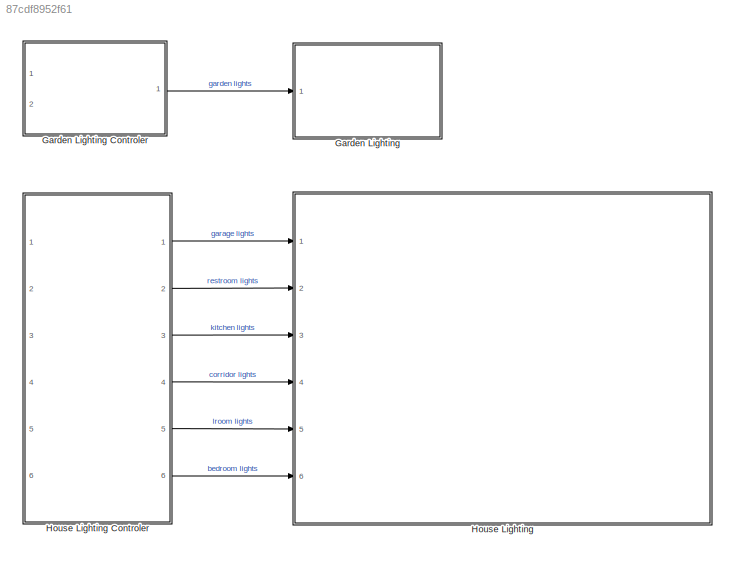
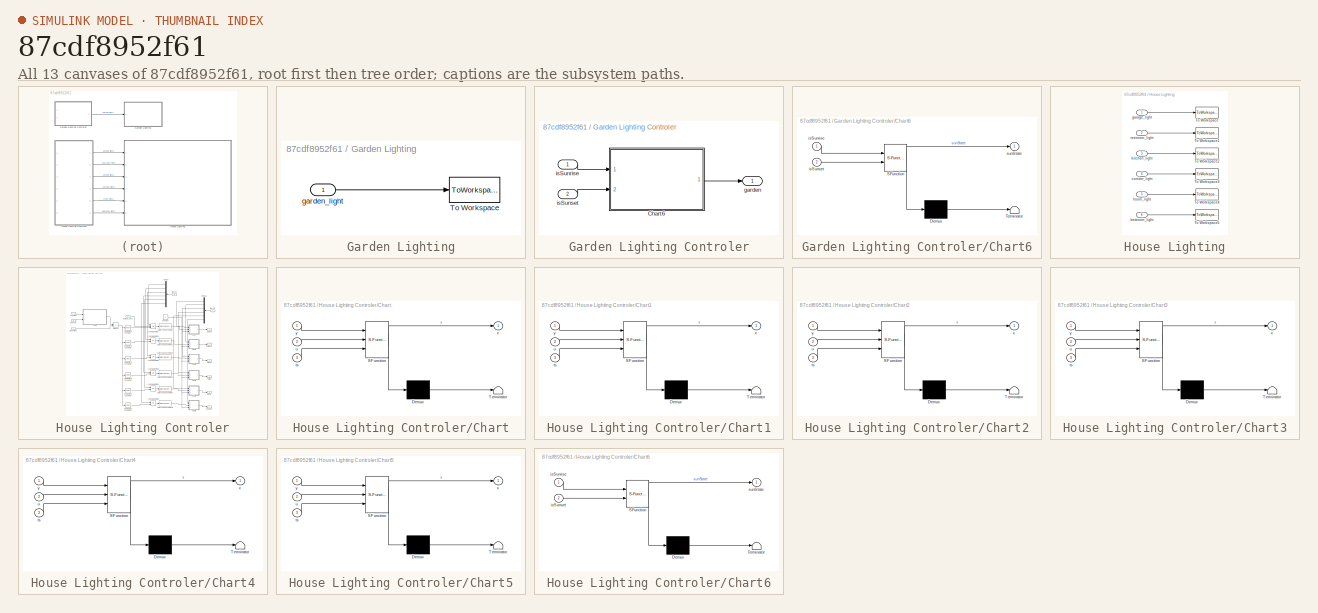
[diagram: thumbnail index - all 13 canvases of the model, root first then tree order]
MODEL slx_87cdf8952f61
KIND model
CONFIG AbsTol = auto
CONFIG EnableMultiTasking = off
CONFIG FixedStep = auto
CONFIG MaxStep = auto
CONFIG MinStep = auto
CONFIG RelTol = 1e-3
CONFIG SampleTimeConstraint = Unconstrained
CONFIG Solver = VariableStepAuto
CONFIG SolverName = VariableStepAuto
CONFIG StartTime = 0.0
CONFIG StopTime = intervals
BLOCK [SubSystem] Garden Lighting
  Ports = [1]
  RequestExecContextInheritance = off
BLOCK [SubSystem] Garden Lighting Controler
  Ports = [2, 1]
  RequestExecContextInheritance = off
BLOCK [SubSystem] Garden Lighting Controler/Chart6
  ErrorFcn = Stateflow.Translate.translate
  PermitHierarchicalResolution = ExplicitOnly
  Ports = [2, 1]
  RequestExecContextInheritance = off
  SFBlockType = Chart
  TreatAsAtomicUnit = on
BLOCK [Demux] Garden Lighting Controler/Chart6/ Demux 
  Outputs = 1
  Ports = [1, 1]
BLOCK [S-Function] Garden Lighting Controler/Chart6/ SFunction 
  EnableBusSupport = on
  FunctionName = sf_sfun
  PortCounts = [2 2]
  Ports = [2, 2]
  SFcnIsStateOwnerBlock = off
  SFunctionDeploymentMode = off
  Tag = Stateflow S-Function lighting 8
BLOCK [Terminator] Garden Lighting Controler/Chart6/ Terminator 
BLOCK [Inport] Garden Lighting Controler/Chart6/isSunrise
  IconDisplay = Port number
BLOCK [Inport] Garden Lighting Controler/Chart6/isSunset
  IconDisplay = Port number
  Port = 2
BLOCK [Outport] Garden Lighting Controler/Chart6/sunState
  IconDisplay = Port number
BLOCK [Outport] Garden Lighting Controler/garden
  IconDisplay = Port number
BLOCK [Inport] Garden Lighting Controler/isSunrise
  IconDisplay = Port number
BLOCK [Inport] Garden Lighting Controler/isSunset
  IconDisplay = Port number
  Port = 2
BLOCK [ToWorkspace] Garden Lighting/To Workspace
  FixptAsFi = on
  MaxDataPoints = inf
  Ports = [1]
  SampleTime = -1
  Save2DSignal = 3-D array (concatenate along third dimension)
  SaveFormat = Timeseries
  VariableName = garden_light
BLOCK [Inport] Garden Lighting/garden_light
  IconDisplay = Port number
BLOCK [SubSystem] House Lighting
  Ports = [6]
  RequestExecContextInheritance = off
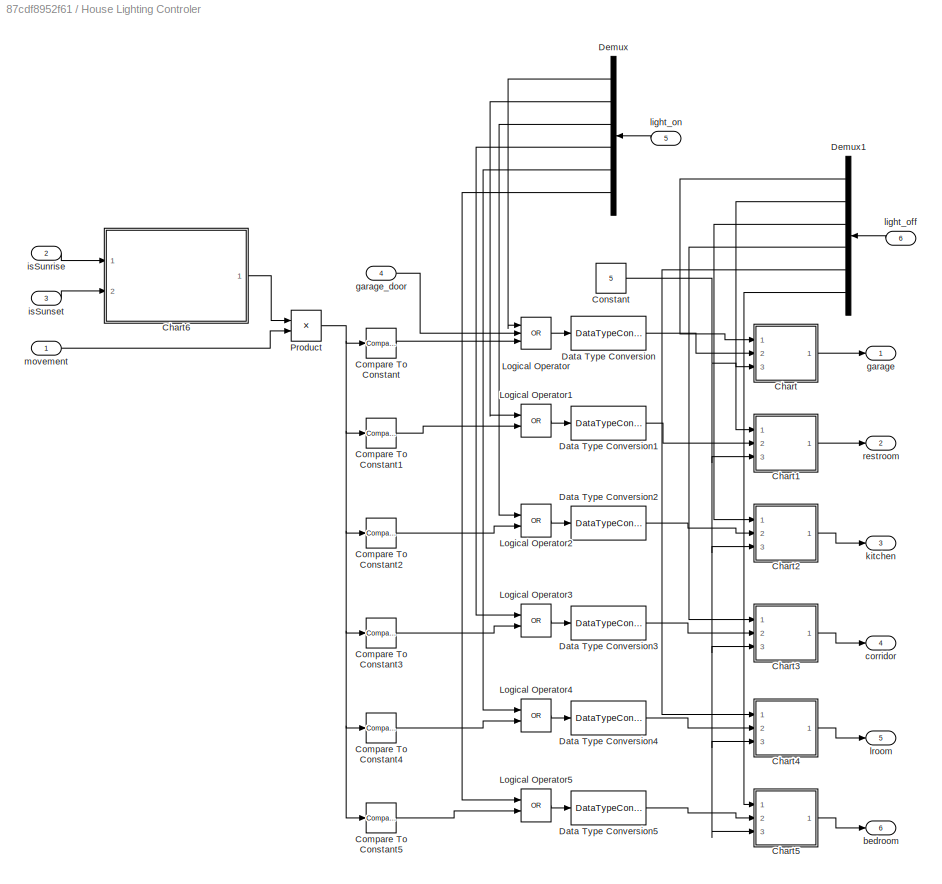
BLOCK [SubSystem] House Lighting Controler
  Ports = [6, 6]
  RequestExecContextInheritance = off
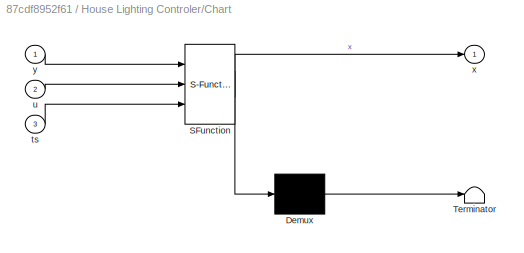
BLOCK [SubSystem] House Lighting Controler/Chart
  ErrorFcn = Stateflow.Translate.translate
  PermitHierarchicalResolution = ExplicitOnly
  Ports = [3, 1]
  RequestExecContextInheritance = off
  SFBlockType = Chart
  TreatAsAtomicUnit = on
BLOCK [Demux] House Lighting Controler/Chart/ Demux 
  Outputs = 1
  Ports = [1, 1]
BLOCK [S-Function] House Lighting Controler/Chart/ SFunction 
  EnableBusSupport = on
  FunctionName = sf_sfun
  PortCounts = [3 2]
  Ports = [3, 2]
  SFcnIsStateOwnerBlock = off
  SFunctionDeploymentMode = off
  Tag = Stateflow S-Function lighting 1
BLOCK [Terminator] House Lighting Controler/Chart/ Terminator 
BLOCK [Inport] House Lighting Controler/Chart/ts
  IconDisplay = Port number
  Port = 3
BLOCK [Inport] House Lighting Controler/Chart/u
  IconDisplay = Port number
  Port = 2
BLOCK [Outport] House Lighting Controler/Chart/x
  IconDisplay = Port number
BLOCK [Inport] House Lighting Controler/Chart/y
  IconDisplay = Port number
BLOCK [SubSystem] House Lighting Controler/Chart1
  ErrorFcn = Stateflow.Translate.translate
  PermitHierarchicalResolution = ExplicitOnly
  Ports = [3, 1]
  RequestExecContextInheritance = off
  SFBlockType = Chart
  TreatAsAtomicUnit = on
BLOCK [Demux] House Lighting Controler/Chart1/ Demux 
  Outputs = 1
  Ports = [1, 1]
BLOCK [S-Function] House Lighting Controler/Chart1/ SFunction 
  EnableBusSupport = on
  FunctionName = sf_sfun
  PortCounts = [3 2]
  Ports = [3, 2]
  SFcnIsStateOwnerBlock = off
  SFunctionDeploymentMode = off
  Tag = Stateflow S-Function lighting 2
BLOCK [Terminator] House Lighting Controler/Chart1/ Terminator 
BLOCK [Inport] House Lighting Controler/Chart1/ts
  IconDisplay = Port number
  Port = 3
BLOCK [Inport] House Lighting Controler/Chart1/u
  IconDisplay = Port number
  Port = 2
BLOCK [Outport] House Lighting Controler/Chart1/x
  IconDisplay = Port number
BLOCK [Inport] House Lighting Controler/Chart1/y
  IconDisplay = Port number
BLOCK [SubSystem] House Lighting Controler/Chart2
  ErrorFcn = Stateflow.Translate.translate
  PermitHierarchicalResolution = ExplicitOnly
  Ports = [3, 1]
  RequestExecContextInheritance = off
  SFBlockType = Chart
  TreatAsAtomicUnit = on
BLOCK [Demux] House Lighting Controler/Chart2/ Demux 
  Outputs = 1
  Ports = [1, 1]
BLOCK [S-Function] House Lighting Controler/Chart2/ SFunction 
  EnableBusSupport = on
  FunctionName = sf_sfun
  PortCounts = [3 2]
  Ports = [3, 2]
  SFcnIsStateOwnerBlock = off
  SFunctionDeploymentMode = off
  Tag = Stateflow S-Function lighting 4
BLOCK [Terminator] House Lighting Controler/Chart2/ Terminator 
BLOCK [Inport] House Lighting Controler/Chart2/ts
  IconDisplay = Port number
  Port = 3
BLOCK [Inport] House Lighting Controler/Chart2/u
  IconDisplay = Port number
  Port = 2
BLOCK [Outport] House Lighting Controler/Chart2/x
  IconDisplay = Port number
BLOCK [Inport] House Lighting Controler/Chart2/y
  IconDisplay = Port number
BLOCK [SubSystem] House Lighting Controler/Chart3
  ErrorFcn = Stateflow.Translate.translate
  PermitHierarchicalResolution = ExplicitOnly
  Ports = [3, 1]
  RequestExecContextInheritance = off
  SFBlockType = Chart
  TreatAsAtomicUnit = on
BLOCK [Demux] House Lighting Controler/Chart3/ Demux 
  Outputs = 1
  Ports = [1, 1]
BLOCK [S-Function] House Lighting Controler/Chart3/ SFunction 
  EnableBusSupport = on
  FunctionName = sf_sfun
  PortCounts = [3 2]
  Ports = [3, 2]
  SFcnIsStateOwnerBlock = off
  SFunctionDeploymentMode = off
  Tag = Stateflow S-Function lighting 5
BLOCK [Terminator] House Lighting Controler/Chart3/ Terminator 
BLOCK [Inport] House Lighting Controler/Chart3/ts
  IconDisplay = Port number
  Port = 3
BLOCK [Inport] House Lighting Controler/Chart3/u
  IconDisplay = Port number
  Port = 2
BLOCK [Outport] House Lighting Controler/Chart3/x
  IconDisplay = Port number
BLOCK [Inport] House Lighting Controler/Chart3/y
  IconDisplay = Port number
BLOCK [SubSystem] House Lighting Controler/Chart4
  ErrorFcn = Stateflow.Translate.translate
  PermitHierarchicalResolution = ExplicitOnly
  Ports = [3, 1]
  RequestExecContextInheritance = off
  SFBlockType = Chart
  TreatAsAtomicUnit = on
BLOCK [Demux] House Lighting Controler/Chart4/ Demux 
  Outputs = 1
  Ports = [1, 1]
BLOCK [S-Function] House Lighting Controler/Chart4/ SFunction 
  EnableBusSupport = on
  FunctionName = sf_sfun
  PortCounts = [3 2]
  Ports = [3, 2]
  SFcnIsStateOwnerBlock = off
  SFunctionDeploymentMode = off
  Tag = Stateflow S-Function lighting 6
BLOCK [Terminator] House Lighting Controler/Chart4/ Terminator 
BLOCK [Inport] House Lighting Controler/Chart4/ts
  IconDisplay = Port number
  Port = 3
BLOCK [Inport] House Lighting Controler/Chart4/u
  IconDisplay = Port number
  Port = 2
BLOCK [Outport] House Lighting Controler/Chart4/x
  IconDisplay = Port number
BLOCK [Inport] House Lighting Controler/Chart4/y
  IconDisplay = Port number
BLOCK [SubSystem] House Lighting Controler/Chart5
  ErrorFcn = Stateflow.Translate.translate
  PermitHierarchicalResolution = ExplicitOnly
  Ports = [3, 1]
  RequestExecContextInheritance = off
  SFBlockType = Chart
  TreatAsAtomicUnit = on
BLOCK [Demux] House Lighting Controler/Chart5/ Demux 
  Outputs = 1
  Ports = [1, 1]
BLOCK [S-Function] House Lighting Controler/Chart5/ SFunction 
  EnableBusSupport = on
  FunctionName = sf_sfun
  PortCounts = [3 2]
  Ports = [3, 2]
  SFcnIsStateOwnerBlock = off
  SFunctionDeploymentMode = off
  Tag = Stateflow S-Function lighting 7
BLOCK [Terminator] House Lighting Controler/Chart5/ Terminator 
BLOCK [Inport] House Lighting Controler/Chart5/ts
  IconDisplay = Port number
  Port = 3
BLOCK [Inport] House Lighting Controler/Chart5/u
  IconDisplay = Port number
  Port = 2
BLOCK [Outport] House Lighting Controler/Chart5/x
  IconDisplay = Port number
BLOCK [Inport] House Lighting Controler/Chart5/y
  IconDisplay = Port number
BLOCK [SubSystem] House Lighting Controler/Chart6
  ErrorFcn = Stateflow.Translate.translate
  PermitHierarchicalResolution = ExplicitOnly
  Ports = [2, 1]
  RequestExecContextInheritance = off
  SFBlockType = Chart
  TreatAsAtomicUnit = on
BLOCK [Demux] House Lighting Controler/Chart6/ Demux 
  Outputs = 1
  Ports = [1, 1]
BLOCK [S-Function] House Lighting Controler/Chart6/ SFunction 
  EnableBusSupport = on
  FunctionName = sf_sfun
  PortCounts = [2 2]
  Ports = [2, 2]
  SFcnIsStateOwnerBlock = off
  SFunctionDeploymentMode = off
  Tag = Stateflow S-Function lighting 9
BLOCK [Terminator] House Lighting Controler/Chart6/ Terminator 
BLOCK [Inport] House Lighting Controler/Chart6/isSunrise
  IconDisplay = Port number
BLOCK [Inport] House Lighting Controler/Chart6/isSunset
  IconDisplay = Port number
  Port = 2
BLOCK [Outport] House Lighting Controler/Chart6/sunState
  IconDisplay = Port number
BLOCK [Reference] House Lighting Controler/Compare To Constant  REF=simulink/Logic and Bit
Operations/Compare
To Constant
  Ports = [1, 1]
  SourceBlock = simulink/Logic and Bit\nOperations/Compare\nTo Constant
  SourceProductBaseCode = SL
  SourceProductName = Simulink
  SourceType = Compare To Constant
BLOCK [Reference] House Lighting Controler/Compare To Constant1  REF=simulink/Logic and Bit
Operations/Compare
To Constant
  Ports = [1, 1]
  SourceBlock = simulink/Logic and Bit\nOperations/Compare\nTo Constant
  SourceProductBaseCode = SL
  SourceProductName = Simulink
  SourceType = Compare To Constant
BLOCK [Reference] House Lighting Controler/Compare To Constant2  REF=simulink/Logic and Bit
Operations/Compare
To Constant
  Ports = [1, 1]
  SourceBlock = simulink/Logic and Bit\nOperations/Compare\nTo Constant
  SourceProductBaseCode = SL
  SourceProductName = Simulink
  SourceType = Compare To Constant
BLOCK [Reference] House Lighting Controler/Compare To Constant3  REF=simulink/Logic and Bit
Operations/Compare
To Constant
  Ports = [1, 1]
  SourceBlock = simulink/Logic and Bit\nOperations/Compare\nTo Constant
  SourceProductBaseCode = SL
  SourceProductName = Simulink
  SourceType = Compare To Constant
BLOCK [Reference] House Lighting Controler/Compare To Constant4  REF=simulink/Logic and Bit
Operations/Compare
To Constant
  Ports = [1, 1]
  SourceBlock = simulink/Logic and Bit\nOperations/Compare\nTo Constant
  SourceProductBaseCode = SL
  SourceProductName = Simulink
  SourceType = Compare To Constant
BLOCK [Reference] House Lighting Controler/Compare To Constant5  REF=simulink/Logic and Bit
Operations/Compare
To Constant
  Ports = [1, 1]
  SourceBlock = simulink/Logic and Bit\nOperations/Compare\nTo Constant
  SourceProductBaseCode = SL
  SourceProductName = Simulink
  SourceType = Compare To Constant
BLOCK [Constant] House Lighting Controler/Constant
  Value = 5
BLOCK [DataTypeConversion] House Lighting Controler/Data Type Conversion
  RndMeth = Floor
  SaturateOnIntegerOverflow = off
BLOCK [DataTypeConversion] House Lighting Controler/Data Type Conversion1
  RndMeth = Floor
  SaturateOnIntegerOverflow = off
BLOCK [DataTypeConversion] House Lighting Controler/Data Type Conversion2
  RndMeth = Floor
  SaturateOnIntegerOverflow = off
BLOCK [DataTypeConversion] House Lighting Controler/Data Type Conversion3
  RndMeth = Floor
  SaturateOnIntegerOverflow = off
BLOCK [DataTypeConversion] House Lighting Controler/Data Type Conversion4
  RndMeth = Floor
  SaturateOnIntegerOverflow = off
BLOCK [DataTypeConversion] House Lighting Controler/Data Type Conversion5
  RndMeth = Floor
  SaturateOnIntegerOverflow = off
BLOCK [Demux] House Lighting Controler/Demux
  DisplayOption = bar
  Outputs = 6
  Ports = [1, 6]
BLOCK [Demux] House Lighting Controler/Demux1
  DisplayOption = bar
  Outputs = 6
  Ports = [1, 6]
BLOCK [Logic] House Lighting Controler/Logical Operator
  AllPortsSameDT = off
  Inputs = 3
  Operator = OR
  OutDataTypeStr = boolean
  Ports = [3, 1]
BLOCK [Logic] House Lighting Controler/Logical Operator1
  AllPortsSameDT = off
  Operator = OR
  OutDataTypeStr = boolean
  Ports = [2, 1]
BLOCK [Logic] House Lighting Controler/Logical Operator2
  AllPortsSameDT = off
  Operator = OR
  OutDataTypeStr = boolean
  Ports = [2, 1]
BLOCK [Logic] House Lighting Controler/Logical Operator3
  AllPortsSameDT = off
  Operator = OR
  OutDataTypeStr = boolean
  Ports = [2, 1]
BLOCK [Logic] House Lighting Controler/Logical Operator4
  AllPortsSameDT = off
  Operator = OR
  OutDataTypeStr = boolean
  Ports = [2, 1]
BLOCK [Logic] House Lighting Controler/Logical Operator5
  AllPortsSameDT = off
  Operator = OR
  OutDataTypeStr = boolean
  Ports = [2, 1]
BLOCK [Product] House Lighting Controler/Product
  InputSameDT = off
  OutDataTypeStr = Inherit: Inherit via internal rule
  Ports = [2, 1]
  RndMeth = Floor
  SaturateOnIntegerOverflow = off
BLOCK [Outport] House Lighting Controler/bedroom
  IconDisplay = Port number
  Port = 6
BLOCK [Outport] House Lighting Controler/corridor
  IconDisplay = Port number
  Port = 4
BLOCK [Outport] House Lighting Controler/garage
  IconDisplay = Port number
BLOCK [Inport] House Lighting Controler/garage_door
  IconDisplay = Port number
  Port = 4
BLOCK [Inport] House Lighting Controler/isSunrise
  IconDisplay = Port number
  Port = 2
BLOCK [Inport] House Lighting Controler/isSunset
  IconDisplay = Port number
  Port = 3
BLOCK [Outport] House Lighting Controler/kitchen
  IconDisplay = Port number
  Port = 3
BLOCK [Inport] House Lighting Controler/light_off
  IconDisplay = Port number
  Port = 6
BLOCK [Inport] House Lighting Controler/light_on
  IconDisplay = Port number
  Port = 5
BLOCK [Outport] House Lighting Controler/lroom
  IconDisplay = Port number
  Port = 5
BLOCK [Inport] House Lighting Controler/movement
  IconDisplay = Port number
BLOCK [Outport] House Lighting Controler/restroom
  IconDisplay = Port number
  Port = 2
BLOCK [ToWorkspace] House Lighting/To Workspace
  FixptAsFi = on
  MaxDataPoints = inf
  Ports = [1]
  SampleTime = -1
  Save2DSignal = 3-D array (concatenate along third dimension)
  SaveFormat = Timeseries
  VariableName = garage_light
BLOCK [ToWorkspace] House Lighting/To Workspace1
  FixptAsFi = on
  MaxDataPoints = inf
  Ports = [1]
  SampleTime = -1
  Save2DSignal = 3-D array (concatenate along third dimension)
  SaveFormat = Timeseries
  VariableName = restroom_light
BLOCK [ToWorkspace] House Lighting/To Workspace2
  FixptAsFi = on
  MaxDataPoints = inf
  Ports = [1]
  SampleTime = -1
  Save2DSignal = 3-D array (concatenate along third dimension)
  SaveFormat = Timeseries
  VariableName = kitchen_light
BLOCK [ToWorkspace] House Lighting/To Workspace3
  FixptAsFi = on
  MaxDataPoints = inf
  Ports = [1]
  SampleTime = -1
  Save2DSignal = 3-D array (concatenate along third dimension)
  SaveFormat = Timeseries
  VariableName = corridor_light
BLOCK [ToWorkspace] House Lighting/To Workspace4
  FixptAsFi = on
  MaxDataPoints = inf
  Ports = [1]
  SampleTime = -1
  Save2DSignal = 3-D array (concatenate along third dimension)
  SaveFormat = Timeseries
  VariableName = lroom_light
BLOCK [ToWorkspace] House Lighting/To Workspace5
  FixptAsFi = on
  MaxDataPoints = inf
  Ports = [1]
  SampleTime = -1
  Save2DSignal = 3-D array (concatenate along third dimension)
  SaveFormat = Timeseries
  VariableName = bedroom_light
BLOCK [Inport] House Lighting/bedroom_light
  IconDisplay = Port number
  Port = 6
BLOCK [Inport] House Lighting/corridor_light
  IconDisplay = Port number
  Port = 4
BLOCK [Inport] House Lighting/garage_light
  IconDisplay = Port number
BLOCK [Inport] House Lighting/kitchen_light
  IconDisplay = Port number
  Port = 3
BLOCK [Inport] House Lighting/lroom_light
  IconDisplay = Port number
  Port = 5
BLOCK [Inport] House Lighting/restroom_light
  IconDisplay = Port number
  Port = 2
LINE Garden Lighting Controler/Chart6:1 -> Garden Lighting Controler/garden:1
LINE Garden Lighting Controler/isSunrise:1 -> Garden Lighting Controler/Chart6:1
LINE Garden Lighting Controler/isSunset:1 -> Garden Lighting Controler/Chart6:2
LINE Garden Lighting Controler:1 -> Garden Lighting:1
LINE Garden Lighting/garden_light:1 -> Garden Lighting/To Workspace:1
LINE House Lighting Controler/Chart1:1 -> House Lighting Controler/restroom:1
LINE House Lighting Controler/Chart2:1 -> House Lighting Controler/kitchen:1
LINE House Lighting Controler/Chart3:1 -> House Lighting Controler/corridor:1
LINE House Lighting Controler/Chart4:1 -> House Lighting Controler/lroom:1
LINE House Lighting Controler/Chart5:1 -> House Lighting Controler/bedroom:1
LINE House Lighting Controler/Chart6:1 -> House Lighting Controler/Product:1
LINE House Lighting Controler/Chart:1 -> House Lighting Controler/garage:1
LINE House Lighting Controler/Compare To Constant1:1 -> House Lighting Controler/Logical Operator1:2
LINE House Lighting Controler/Compare To Constant2:1 -> House Lighting Controler/Logical Operator2:2
LINE House Lighting Controler/Compare To Constant3:1 -> House Lighting Controler/Logical Operator3:2
LINE House Lighting Controler/Compare To Constant4:1 -> House Lighting Controler/Logical Operator4:2
LINE House Lighting Controler/Compare To Constant5:1 -> House Lighting Controler/Logical Operator5:2
LINE House Lighting Controler/Compare To Constant:1 -> House Lighting Controler/Logical Operator:3
NET House Lighting Controler/Constant:1 -> House Lighting Controler/Chart1:3, House Lighting Controler/Chart2:3, House Lighting Controler/Chart3:3, House Lighting Controler/Chart4:3, House Lighting Controler/Chart5:3, House Lighting Controler/Chart:3
LINE House Lighting Controler/Data Type Conversion1:1 -> House Lighting Controler/Chart1:2
LINE House Lighting Controler/Data Type Conversion2:1 -> House Lighting Controler/Chart2:2
LINE House Lighting Controler/Data Type Conversion3:1 -> House Lighting Controler/Chart3:2
LINE House Lighting Controler/Data Type Conversion4:1 -> House Lighting Controler/Chart4:2
LINE House Lighting Controler/Data Type Conversion5:1 -> House Lighting Controler/Chart5:2
LINE House Lighting Controler/Data Type Conversion:1 -> House Lighting Controler/Chart:2
LINE House Lighting Controler/Demux1:1 -> House Lighting Controler/Chart:1
LINE House Lighting Controler/Demux1:2 -> House Lighting Controler/Chart1:1
LINE House Lighting Controler/Demux1:3 -> House Lighting Controler/Chart2:1
LINE House Lighting Controler/Demux1:4 -> House Lighting Controler/Chart3:1
LINE House Lighting Controler/Demux1:5 -> House Lighting Controler/Chart4:1
LINE House Lighting Controler/Demux1:6 -> House Lighting Controler/Chart5:1
LINE House Lighting Controler/Demux:1 -> House Lighting Controler/Logical Operator:1
LINE House Lighting Controler/Demux:2 -> House Lighting Controler/Logical Operator1:1
LINE House Lighting Controler/Demux:3 -> House Lighting Controler/Logical Operator2:1
LINE House Lighting Controler/Demux:4 -> House Lighting Controler/Logical Operator3:1
LINE House Lighting Controler/Demux:5 -> House Lighting Controler/Logical Operator4:1
LINE House Lighting Controler/Demux:6 -> House Lighting Controler/Logical Operator5:1
LINE House Lighting Controler/Logical Operator1:1 -> House Lighting Controler/Data Type Conversion1:1
LINE House Lighting Controler/Logical Operator2:1 -> House Lighting Controler/Data Type Conversion2:1
LINE House Lighting Controler/Logical Operator3:1 -> House Lighting Controler/Data Type Conversion3:1
LINE House Lighting Controler/Logical Operator4:1 -> House Lighting Controler/Data Type Conversion4:1
LINE House Lighting Controler/Logical Operator5:1 -> House Lighting Controler/Data Type Conversion5:1
LINE House Lighting Controler/Logical Operator:1 -> House Lighting Controler/Data Type Conversion:1
NET House Lighting Controler/Product:1 -> House Lighting Controler/Compare To Constant1:1, House Lighting Controler/Compare To Constant2:1, House Lighting Controler/Compare To Constant3:1, House Lighting Controler/Compare To Constant4:1, House Lighting Controler/Compare To Constant5:1, House Lighting Controler/Compare To Constant:1
LINE House Lighting Controler/garage_door:1 -> House Lighting Controler/Logical Operator:2
LINE House Lighting Controler/isSunrise:1 -> House Lighting Controler/Chart6:1
LINE House Lighting Controler/isSunset:1 -> House Lighting Controler/Chart6:2
LINE House Lighting Controler/light_off:1 -> House Lighting Controler/Demux1:1
LINE House Lighting Controler/light_on:1 -> House Lighting Controler/Demux:1
LINE House Lighting Controler/movement:1 -> House Lighting Controler/Product:2
LINE House Lighting Controler:1 -> House Lighting:1
LINE House Lighting Controler:2 -> House Lighting:2
LINE House Lighting Controler:3 -> House Lighting:3
LINE House Lighting Controler:4 -> House Lighting:4
LINE House Lighting Controler:5 -> House Lighting:5
LINE House Lighting Controler:6 -> House Lighting:6
LINE House Lighting/bedroom_light:1 -> House Lighting/To Workspace5:1
LINE House Lighting/corridor_light:1 -> House Lighting/To Workspace3:1
LINE House Lighting/garage_light:1 -> House Lighting/To Workspace:1
LINE House Lighting/kitchen_light:1 -> House Lighting/To Workspace2:1
LINE House Lighting/lroom_light:1 -> House Lighting/To Workspace4:1
LINE House Lighting/restroom_light:1 -> House Lighting/To Workspace1:1
note: NET lines group one-source signal fan-out (src -> all destinations, sorted); 1:1 wires keep LINE
CHART House Lighting Controler/Chart states=3 transitions=7
  STATE_LABEL 'Idle\nx=0;\nt1=ts/timeStep;'
  STATE_LABEL 'State1\nx=1;'
  STATE_LABEL 'Wait'
CHART House Lighting Controler/Chart1 states=3 transitions=7
  STATE_LABEL 'Idle\nx=0;\nt1=ts/timeStep;'
  STATE_LABEL 'State1\nx=1;'
  STATE_LABEL 'Wait'
CHART House Lighting Controler/Chart2 states=3 transitions=7
  STATE_LABEL 'Idle\nx=0;\nt1=ts/timeStep;'
  STATE_LABEL 'State1\nx=1;'
  STATE_LABEL 'Wait'
CHART House Lighting Controler/Chart3 states=3 transitions=7
  STATE_LABEL 'Idle\nx=0;\nt1=ts/timeStep;'
  STATE_LABEL 'State1\nx=1;'
  STATE_LABEL 'Wait'
CHART House Lighting Controler/Chart4 states=3 transitions=7
  STATE_LABEL 'Idle\nx=0;\nt1=ts/timeStep;'
  STATE_LABEL 'State1\nx=1;'
  STATE_LABEL 'Wait'
CHART House Lighting Controler/Chart5 states=3 transitions=7
  STATE_LABEL 'Idle\nx=0;\nt1=ts/timeStep;'
  STATE_LABEL 'State1\nx=1;'
  STATE_LABEL 'Wait'
CHART Garden Lighting Controler/Chart6 states=2 transitions=3
  STATE_LABEL 'sun_up\nsunState=0;\n'
  STATE_LABEL 'sun_down\nsunState=1;'
CHART House Lighting Controler/Chart6 states=2 transitions=3
  STATE_LABEL 'sun_up\nsunState=0;\n'
  STATE_LABEL 'sun_down\nsunState=1;'
